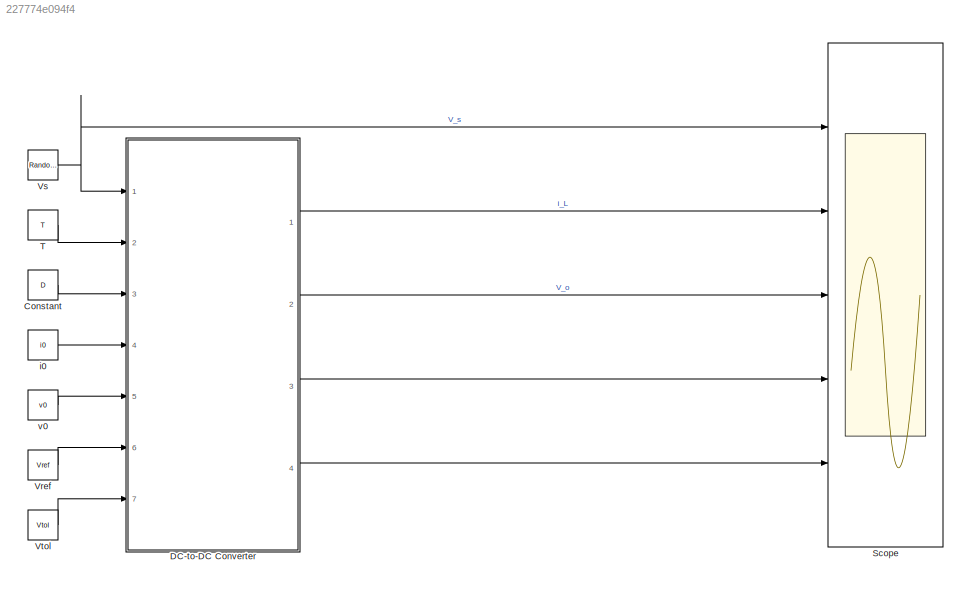
MODEL slx_227774e094f4
KIND model
CONFIG AbsTol = auto
CONFIG EnableMultiTasking = on
CONFIG FixedStep = auto
CONFIG MaxStep = auto
CONFIG MinStep = auto
CONFIG RelTol = 1e-3
CONFIG SampleTimeConstraint = Unconstrained
CONFIG Solver = ode45
CONFIG SolverName = ode45
CONFIG StartTime = 0.0
CONFIG StopTime = Tmax
BLOCK [Constant] Constant
  Value = D
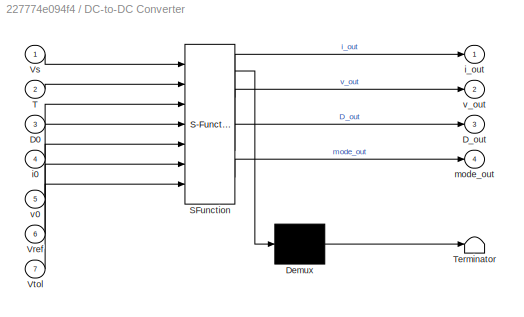
BLOCK [SubSystem] DC-to-DC Converter
  ErrorFcn = Stateflow.Translate.translate
  PermitHierarchicalResolution = ExplicitOnly
  Ports = [7, 4]
  RequestExecContextInheritance = off
  SFBlockType = Chart
  TreatAsAtomicUnit = on
BLOCK [Demux] DC-to-DC Converter/ Demux 
  Outputs = 1
  Ports = [1, 1]
BLOCK [S-Function] DC-to-DC Converter/ SFunction 
  EnableBusSupport = off
  FunctionName = sf_sfun
  Parameters = a00c,a00d,a00o,a01c,a01d,a01o,a10c,a10d,a10o,a11c,a11d,a11o,b0c,b0d,b0o,b1c,b1d,b1o
  PortCounts = [7 5]
  Ports = [7, 5]
  SFcnIsStateOwnerBlock = off
  SFunctionDeploymentMode = off
  Tag = Stateflow S-Function 1
BLOCK [Terminator] DC-to-DC Converter/ Terminator 
BLOCK [Inport] DC-to-DC Converter/D0
  IconDisplay = Port number
  Port = 3
BLOCK [Outport] DC-to-DC Converter/D_out
  IconDisplay = Port number
  Port = 3
BLOCK [Inport] DC-to-DC Converter/T
  IconDisplay = Port number
  Port = 2
BLOCK [Inport] DC-to-DC Converter/Vref
  IconDisplay = Port number
  Port = 6
BLOCK [Inport] DC-to-DC Converter/Vs
  IconDisplay = Port number
BLOCK [Inport] DC-to-DC Converter/Vtol
  IconDisplay = Port number
  Port = 7
BLOCK [Inport] DC-to-DC Converter/i0
  IconDisplay = Port number
  Port = 4
BLOCK [Outport] DC-to-DC Converter/i_out
  IconDisplay = Port number
BLOCK [Outport] DC-to-DC Converter/mode_out
  IconDisplay = Port number
  Port = 4
BLOCK [Inport] DC-to-DC Converter/v0
  IconDisplay = Port number
  Port = 5
BLOCK [Outport] DC-to-DC Converter/v_out
  IconDisplay = Port number
  Port = 2
BLOCK [Scope] Scope
  Floating = off
  NumInputPorts = 5
  Ports = [5]
  ScopeSpecificationString = C++SS(StrPVP('Location','[5, 75, 1925, 1039]'),StrPVP('Open','off'),StrPVP('ZoomMode','xonly'),MxPVP('AxesTitles',54,'struct(''axes1'',''Voltage Source (V)'',''axes2'',''i_L Current (A)'',''axes3'',''V_C Voltage (V)'',''axes4'',''%<SignalLabel>'',''axes5'',''%<SignalLabel>'')'),MxPVP('ScopeGraphics',57,'struct(''FigureColor'',''[1 1 1]'',''AxesColor'',''[1 1 1]'',''AxesTickColor'',''[0 0 0]'',''Li...<+566ch>
BLOCK [Constant] T
  Value = T
BLOCK [Constant] Vref
  Value = Vref
BLOCK [RandomNumber] Vs
  Mean = Vs
  SampleTime = T/10
  Variance = Vs_noise
BLOCK [Constant] Vtol
  Value = Vtol
BLOCK [Constant] i0
  Value = i0
BLOCK [Constant] v0
  Value = v0
LINE Constant:1 -> DC-to-DC Converter:3
LINE DC-to-DC Converter:1 -> Scope:2
LINE DC-to-DC Converter:2 -> Scope:3
LINE DC-to-DC Converter:3 -> Scope:4
LINE DC-to-DC Converter:4 -> Scope:5
LINE T:1 -> DC-to-DC Converter:2
LINE Vref:1 -> DC-to-DC Converter:6
NET Vs:1 -> DC-to-DC Converter:1, Scope:1
LINE Vtol:1 -> DC-to-DC Converter:7
LINE i0:1 -> DC-to-DC Converter:4
LINE v0:1 -> DC-to-DC Converter:5
note: NET lines group one-source signal fan-out (src -> all destinations, sorted); 1:1 wires keep LINE
CHART DC-to-DC Converter states=3 transitions=5
  STATE_LABEL 'Discontinuous\ndu:\ni_dot = a00d*i+a01d*v+b0d*Vs;\nv_dot = a10d*i+a11d*v+b1d*Vs;\nt_dot = 1;\ni_out =i;\nv_out = v;\nD_out=D;\nmode_out=3;'
  STATE_LABEL 'Charging\ndu:\ni_dot = a00c*i+a01c*v+b0c*Vs;\nv_dot = a10c*i+a11c*v+b1c*Vs;\nt_dot = 1;\ni_out = i;\nv_out = v;\nD_out=D;\nmode_out=2;'
  STATE_LABEL 'Discharging\ndu:\ni_dot = a00o*i+a01o*v+b0o*Vs;\nv_dot = a10o*i+a11o*v+b1o*Vs;\nt_dot = 1;\ni_out = i;\nv_out = v;\nD_out=D;\nmode_out=1;'
